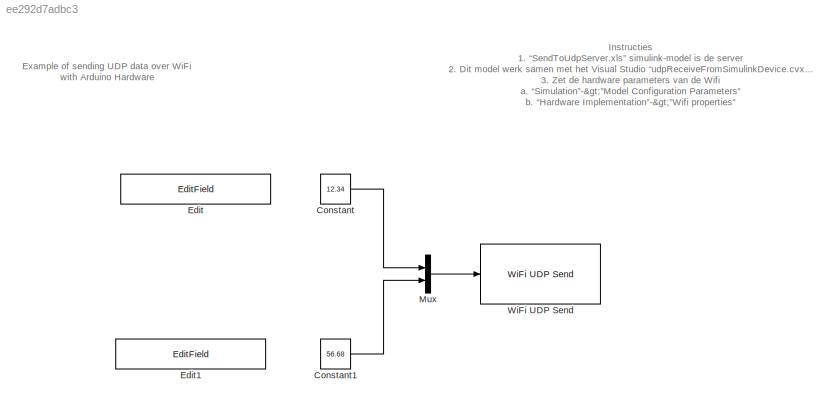
MODEL slx_ee292d7adbc3
KIND model
CONFIG AbsTol = auto
CONFIG EnableMultiTasking = on
CONFIG FixedStep = auto
CONFIG MaxStep = auto
CONFIG MinStep = auto
CONFIG RelTol = 1e-3
CONFIG SampleTimeConstraint = Unconstrained
CONFIG Solver = FixedStepAuto
CONFIG SolverName = FixedStepAuto
CONFIG StartTime = 0.0
CONFIG StopTime = inf
BLOCK [Constant] Constant
  OutDataTypeStr = double
  Value = 12.34
BLOCK [Constant] Constant1
  OutDataTypeStr = double
  Value = 56.68
BLOCK [EditField] Edit
  Alignment = Center
  LabelPosition = Hide
  WebBlockId = 31
BLOCK [EditField] Edit1
  Alignment = Center
  LabelPosition = Hide
  WebBlockId = 32
BLOCK [Mux] Mux
  DisplayOption = bar
  Inputs = 2
  Ports = [2, 1]
BLOCK [Reference] WiFi UDP Send  REF=arduinowifilib/WiFi UDP Send
  Ports = [1]
  SourceBlock = arduinowifilib/WiFi UDP Send
  SourceProductBaseCode = ARDUINO
  SourceProductName = Simulink Support Package for Arduino Hardware
  SourceType = Arduino WiFi UDP Send
ANNOTATION (root): Instructies 1. “SendToUdpServer.xls” simulink-model is de server 2. Dit model werk samen met het Visual Studio “udpReceiveFromSimulinkDevice.cvxproj” voorbeeld(is de client) 3. Zet de hardware parameters van de Wifi a. “Simulation”->”Model Configuration Parameters” b. “Hardware Implementation”->”Wifi properties” c. Vul “Service Set identiefier(SSID)”, “Wifi encryption” en “password” in overeenkoms...<+809ch>
ANNOTATION (root): Example of sending UDP data over WiFi with Arduino Hardware
LINE Constant1:1 -> Mux:2
LINE Constant:1 -> Mux:1
LINE Mux:1 -> WiFi UDP Send:1
